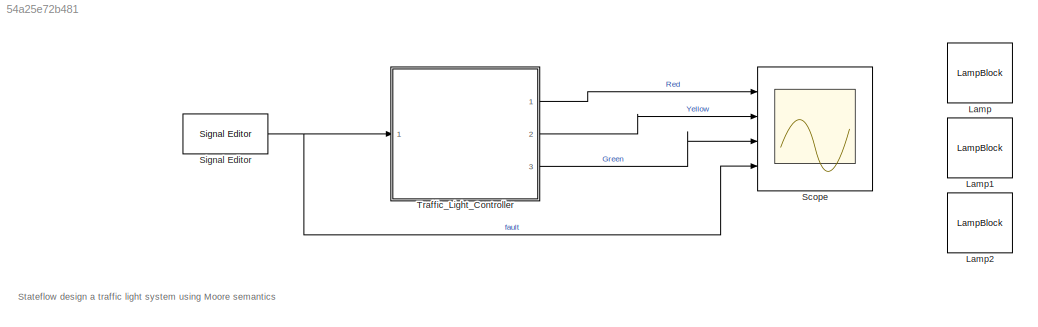
MODEL slx_54a25e72b481
KIND model
CONFIG AbsTol = auto
CONFIG EnableMultiTasking = off
CONFIG FixedStep = auto
CONFIG MaxStep = auto
CONFIG MinStep = auto
CONFIG RelTol = 1e-3
CONFIG SampleTimeConstraint = Unconstrained
CONFIG SolverName = VariableStepAuto
CONFIG StartTime = 0.0
CONFIG StopTime = 10.0
BLOCK [LampBlock] Lamp
BLOCK [LampBlock] Lamp1
BLOCK [LampBlock] Lamp2
BLOCK [Scope] Scope
  Floating = off
  NumInputPorts = 4
  Ports = [4]
  ScopeSpecificationString = Simulink.scopes.TimeScopeBlockCfg('CurrentConfiguration', extmgr.ConfigurationSet(extmgr.Configuration('Core','General UI',true,'FigureColor',[1 1 1]),extmgr.Configuration('Core','Source UI',true),extmgr.Configuration('Sources','WiredSimulink',true),extmgr.Configuration('Visuals','Time Domain',true,'SerializedDisplays',{struct('MinYLimReal','-0.125','MaxYLimReal','1.125','YLabelReal','','MinYLimMa...<+3891ch>
BLOCK [Reference] Signal Editor  REF=SignalEditorBlockLib/Signal Editor
  Ports = [0, 1]
  SourceBlock = SignalEditorBlockLib/Signal Editor
  SourceProductBaseCode = SL
  SourceType = SignalEditor
  UserDataPersistent = on
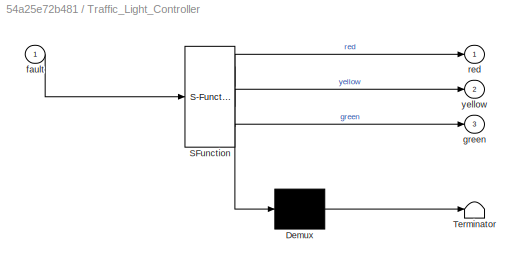
BLOCK [SubSystem] Traffic_Light_Controller
  ErrorFcn = Stateflow.Translate.translate
  PermitHierarchicalResolution = ExplicitOnly
  Ports = [1, 3]
  RequestExecContextInheritance = off
  SFBlockType = Chart
  TreatAsAtomicUnit = on
BLOCK [Demux] Traffic_Light_Controller/ Demux 
  Outputs = 1
  Ports = [1, 1]
BLOCK [S-Function] Traffic_Light_Controller/ SFunction 
  EnableBusSupport = on
  FunctionName = sf_sfun
  PortCounts = [1 4]
  Ports = [1, 4]
  SFcnIsStateOwnerBlock = off
  SFunctionDeploymentMode = off
  Tag = Stateflow S-Function 2
BLOCK [Terminator] Traffic_Light_Controller/ Terminator 
BLOCK [Inport] Traffic_Light_Controller/fault
BLOCK [Outport] Traffic_Light_Controller/green
  Port = 3
BLOCK [Outport] Traffic_Light_Controller/red
BLOCK [Outport] Traffic_Light_Controller/yellow
  Port = 2
ANNOTATION (root): Stateflow design a traffic light system using Moore semantics
NET Signal Editor:1 -> Scope:4, Traffic_Light_Controller:1
LINE Traffic_Light_Controller:1 -> Scope:1
LINE Traffic_Light_Controller:2 -> Scope:2
LINE Traffic_Light_Controller:3 -> Scope:3
note: NET lines group one-source signal fan-out (src -> all destinations, sorted); 1:1 wires keep LINE
CHART Traffic_Light_Controller states=8 transitions=12
  STATE_LABEL 'Normal'
  STATE_LABEL 'Stop\n% Red light\nentry:\nred = 1;\nyellow = 0;\ngreen = 0;'
  STATE_LABEL 'PrepareToStop \n% Yellow light\nentry:\nred = 0;\nyellow = 1;\ngreen = 0;'
  STATE_LABEL 'Go\n% Green light\nentry:\nred = 0;\nyellow = 0;\ngreen = 1;'
  STATE_LABEL 'after(3,sec)'
  STATE_LABEL 'after(3,sec)'
  STATE_LABEL 'after(10,sec)'
  STATE_LABEL 'Stop\n% Red light\nentry:\nred = 1;\nyellow = 0;\ngreen = 0;'
  STATE_LABEL 'PrepareToStop \n% Yellow light\nentry:\nred = 0;\nyellow = 1;\ngreen = 0;'
  STATE_LABEL 'Go\n% Green light\nentry:\nred = 0;\nyellow = 0;\ngreen = 1;'
  STATE_LABEL 'Fault\nentry:\nyellow = 0;\ngreen = 0;'
  STATE_LABEL 'BlinkOn\n% Red light\nentry:\nred = 1;'
  STATE_LABEL 'BlinkOff\n% No light\nentry:\nred = 0;'
  STATE_LABEL 'after(1,sec)'
  STATE_LABEL 'after(1,sec)'
  STATE_LABEL 'BlinkOn\n% Red light\nentry:\nred = 1;'
  STATE_LABEL 'BlinkOff\n% No light\nentry:\nred = 0;'
  STATE_LABEL '<!DOCTYPE HTML PUBLIC "-//W3C//DTD HTML 4.0//EN" "http://www.w3.org/TR/REC-html40/strict.dtd">\n<html><head><meta name="qrichtext" content="1" /><style type="text/css">\np, li { white-space: pre-wrap; }\n</style></head><body align="left" style=" font-family:\'Helvetica\'; font-size:12px; font-weight:400; font-style:normal;">\n<p align="left" style=" margin-top:0px; margin-bottom:0px; margin-left:0px; ma...<+1389ch>'
CHART  states=0 transitions=0
